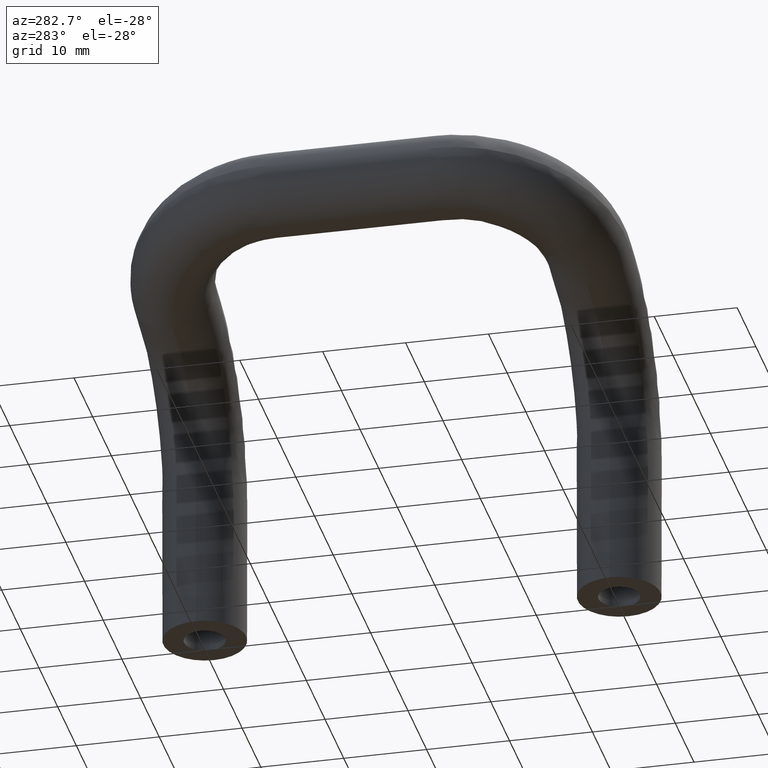
[diagram: clean part render]
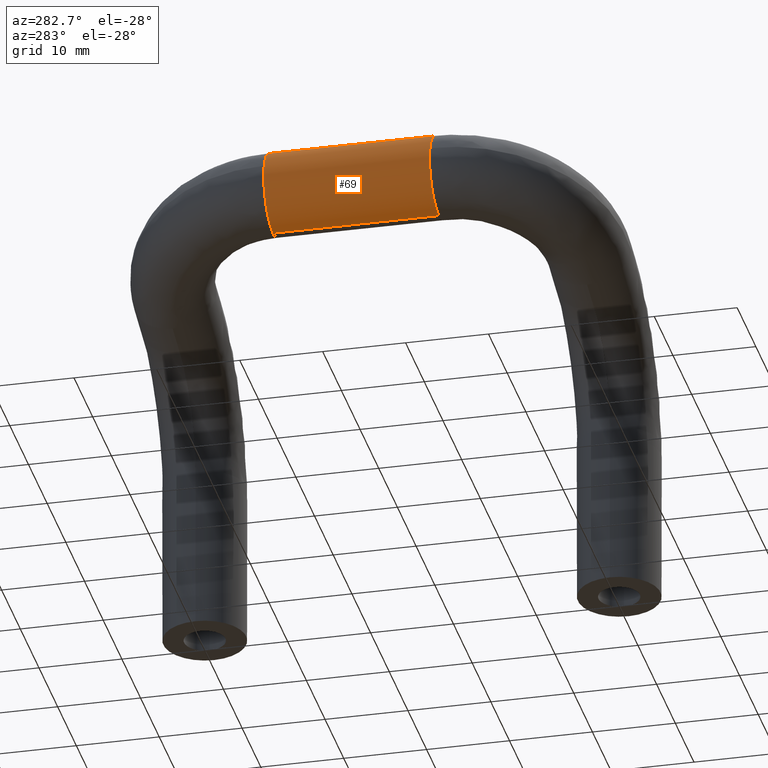
[diagram: same view with one face highlighted and labeled with its STEP entity id]
A machine part, auxiliary view. The second image highlights one B-rep face of the part: STEP entity #69.
In plain terms, the highlighted cylindrical surface (partial cylindrical patch) has radius 5 mm, axis along (-0, 1, -0).
Its self-contained STEP definition (entity closure, byte-faithful):
#69=ADVANCED_FACE('',(#371),#370,.T.);
#370=CYLINDRICAL_SURFACE('',#990,5.00000000000E+00);
#371=FACE_OUTER_BOUND('',#991,.T.);
#987=CARTESIAN_POINT('',(-3.00000000000E+01,9.95000000000E+02,4.20000000000E+01));
#988=DIRECTION('',(-0.00000000000E+00,1.00000000000E+00,-0.00000000000E+00));
#989=DIRECTION('',(0.00000000000E+00,0.00000000000E+00,1.00000000000E+00));
#990=AXIS2_PLACEMENT_3D('',#987,#988,#989);
#991=EDGE_LOOP('',(#1210,#1211,#1212,#1213,#1214,#1215,#1216,#1217));
#1210=ORIENTED_EDGE('',*,*,#1329,.F.);
#1211=ORIENTED_EDGE('',*,*,#1328,.F.);
#1212=ORIENTED_EDGE('',*,*,#1335,.F.);
#1213=ORIENTED_EDGE('',*,*,#1339,.T.);
#1214=ORIENTED_EDGE('',*,*,#1341,.T.);
#1215=ORIENTED_EDGE('',*,*,#1342,.T.);
#1216=ORIENTED_EDGE('',*,*,#1343,.T.);
#1217=ORIENTED_EDGE('',*,*,#1340,.F.);
#1328=EDGE_CURVE('',#1796,#1797,#1798,.T.);
#1329=EDGE_CURVE('',#1797,#1804,#1805,.T.);
#1335=EDGE_CURVE('',#1837,#1796,#1844,.T.);
#1339=EDGE_CURVE('',#1837,#1865,#1872,.T.);
#1340=EDGE_CURVE('',#1804,#1850,#1878,.T.);
#1341=EDGE_CURVE('',#1865,#1884,#1885,.T.);
#1342=EDGE_CURVE('',#1884,#1891,#1892,.T.);
#1343=EDGE_CURVE('',#1891,#1850,#1898,.T.);
#1796=VERTEX_POINT('',#2330);
#1797=VERTEX_POINT('',#2331);
#1798=CIRCLE('',#2335,5.00000000000E+00);
#1804=VERTEX_POINT('',#2336);
#1805=CIRCLE('',#2340,5.00000000000E+00);
#1837=VERTEX_POINT('',#2357);
#1844=CIRCLE('',#2365,5.00000000000E+00);
#1850=VERTEX_POINT('',#2366);
#1865=VERTEX_POINT('',#2377);
#1872=(BOUNDED_CURVE() B_SPLINE_CURVE(1,(#2382,#2383),.UNSPECIFIED.,.F.,.F.) B_SPLINE_CURVE_WITH_KNOTS((2,2),(8.33333328360E-02,9.16666665505E-01),.UNSPECIFIED.) CURVE() GEOMETRIC_REPRESENTATION_ITEM() RATIONAL_B_SPLINE_CURVE((1.00000000000E+00,1.00000000000E+00)) REPRESENTATION_ITEM('') );
#1878=(BOUNDED_CURVE() B_SPLINE_CURVE(1,(#2384,#2385),.UNSPECIFIED.,.F.,.F.) B_SPLINE_CURVE_WITH_KNOTS((2,2),(8.33333333333E-02,9.16666666667E-01),.UNSPECIFIED.) CURVE() GEOMETRIC_REPRESENTATION_ITEM() RATIONAL_B_SPLINE_CURVE((7.50000000000E-01,7.50000000000E-01)) REPRESENTATION_ITEM('') );
#1884=VERTEX_POINT('',#2386);
#1885=CIRCLE('',#2390,5.00000000000E+00);
#1891=VERTEX_POINT('',#2391);
#1892=CIRCLE('',#2395,5.00000000000E+00);
#1898=CIRCLE('',#2399,5.00000000000E+00);
#2330=CARTESIAN_POINT('',(-3.47628188855E+01,1.50000000000E+01,4.35216951941E+01));
#2331=CARTESIAN_POINT('',(-3.50000000000E+01,1.50000000000E+01,4.20000000000E+01));
#2332=CARTESIAN_POINT('',(-3.00000000000E+01,1.50000000000E+01,4.20000000000E+01));
#2333=DIRECTION('',(6.60973947398E-16,-1.00000000000E+00,-2.11177477394E-16));
#2334=DIRECTION('',(1.00000000000E+00,6.60973947398E-16,-1.22460635382E-16));
#2335=AXIS2_PLACEMENT_3D('',#2332,#2333,#2334);
#2336=CARTESIAN_POINT('',(-2.99999390151E+01,1.50000000000E+01,3.70000000004E+01));
#2337=CARTESIAN_POINT('',(-3.00000000000E+01,1.50000000000E+01,4.20000000000E+01));
#2338=DIRECTION('',(6.60973947398E-16,-1.00000000000E+00,-2.11177477394E-16));
#2339=DIRECTION('',(1.00000000000E+00,6.60973947398E-16,-1.22460635382E-16));
#2340=AXIS2_PLACEMENT_3D('',#2337,#2338,#2339);
#2357=CARTESIAN_POINT('',(-2.99999999992E+01,1.50000000000E+01,4.70000000000E+01));
#2362=CARTESIAN_POINT('',(-3.00000000000E+01,1.50000000000E+01,4.20000000000E+01));
#2363=DIRECTION('',(6.60973947398E-16,-1.00000000000E+00,-2.11177477394E-16));
#2364=DIRECTION('',(1.00000000000E+00,6.60973947398E-16,-1.22460635382E-16));
#2365=AXIS2_PLACEMENT_3D('',#2362,#2363,#2364);
#2366=CARTESIAN_POINT('',(-2.99999390121E+01,3.50000000000E+01,3.70000000004E+01));
#2377=CARTESIAN_POINT('',(-2.99999999992E+01,3.50000000000E+01,4.70000000000E+01));
#2382=CARTESIAN_POINT('',(-3.00000000000E+01,1.49999999881E+01,4.70000000000E+01));
#2383=CARTESIAN_POINT('',(-3.00000000000E+01,3.49999999721E+01,4.70000000000E+01));
#2384=CARTESIAN_POINT('',(-3.00000000000E+01,1.50000000000E+01,3.70000000000E+01));
#2385=CARTESIAN_POINT('',(-3.00000000000E+01,3.50000000000E+01,3.70000000000E+01));
#2386=CARTESIAN_POINT('',(-3.47628188855E+01,3.50000000000E+01,4.35216951941E+01));
#2387=CARTESIAN_POINT('',(-3.00000000000E+01,3.50000000000E+01,4.20000000000E+01));
#2388=DIRECTION('',(-6.60973947398E-16,-1.00000000000E+00,2.11177477394E-16));
#2389=DIRECTION('',(1.00000000000E+00,-6.60973947398E-16,-1.22460635382E-16));
#2390=AXIS2_PLACEMENT_3D('',#2387,#2388,#2389);
#2391=CARTESIAN_POINT('',(-3.50000000000E+01,3.50000000000E+01,4.20000000000E+01));
#2392=CARTESIAN_POINT('',(-3.00000000000E+01,3.50000000000E+01,4.20000000000E+01));
#2393=DIRECTION('',(-6.60973947398E-16,-1.00000000000E+00,2.11177477394E-16));
#2394=DIRECTION('',(1.00000000000E+00,-6.60973947398E-16,-1.22460635382E-16));
#2395=AXIS2_PLACEMENT_3D('',#2392,#2393,#2394);
#2396=CARTESIAN_POINT('',(-3.00000000000E+01,3.50000000000E+01,4.20000000000E+01));
#2397=DIRECTION('',(-6.60973947398E-16,-1.00000000000E+00,2.11177477394E-16));
#2398=DIRECTION('',(1.00000000000E+00,-6.60973947398E-16,-1.22460635382E-16));
#2399=AXIS2_PLACEMENT_3D('',#2396,#2397,#2398);